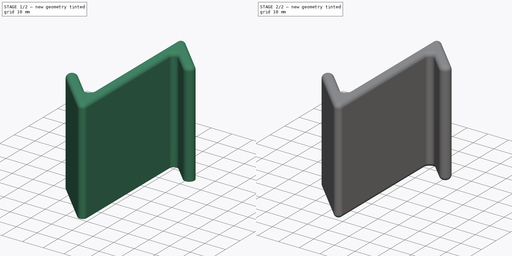
[diagram: build sequence overview — one tinted view per stage of 2, left to right]
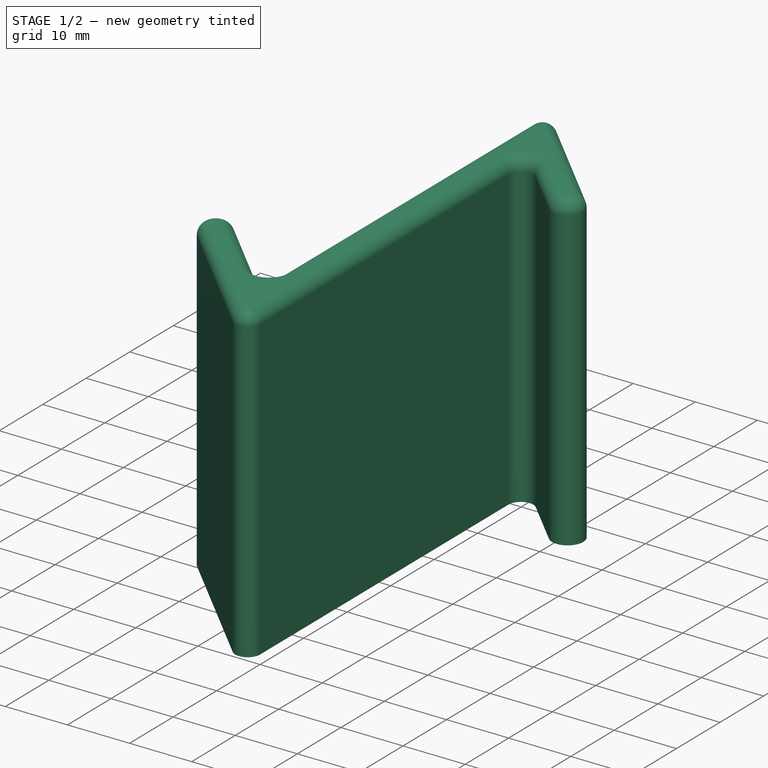
[diagram: stage 1 of 2 — iso view after this stage's code; geometry added in this stage tinted green]
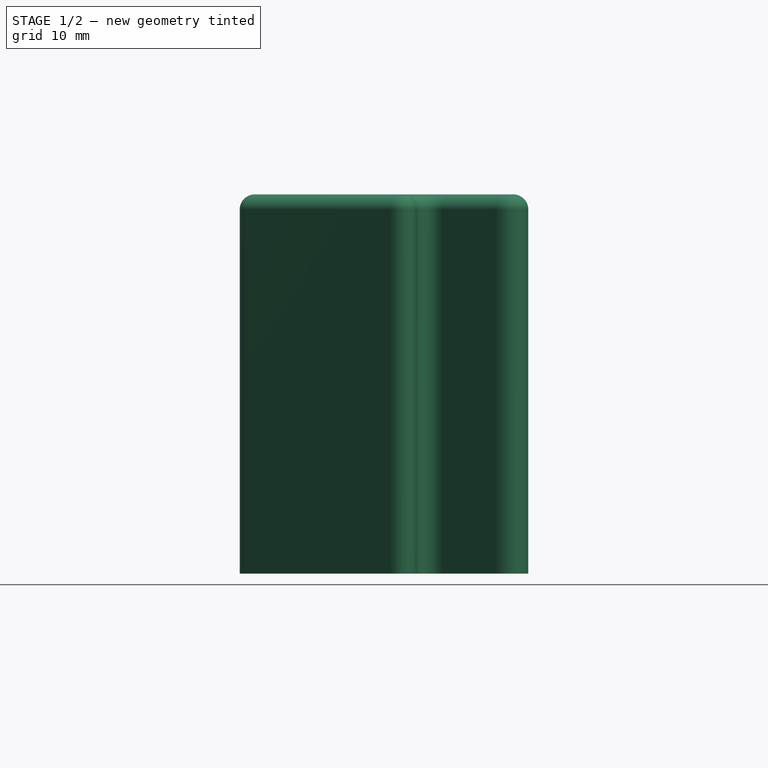
[diagram: stage 1 of 2 — front view after this stage's code; geometry added in this stage tinted green]
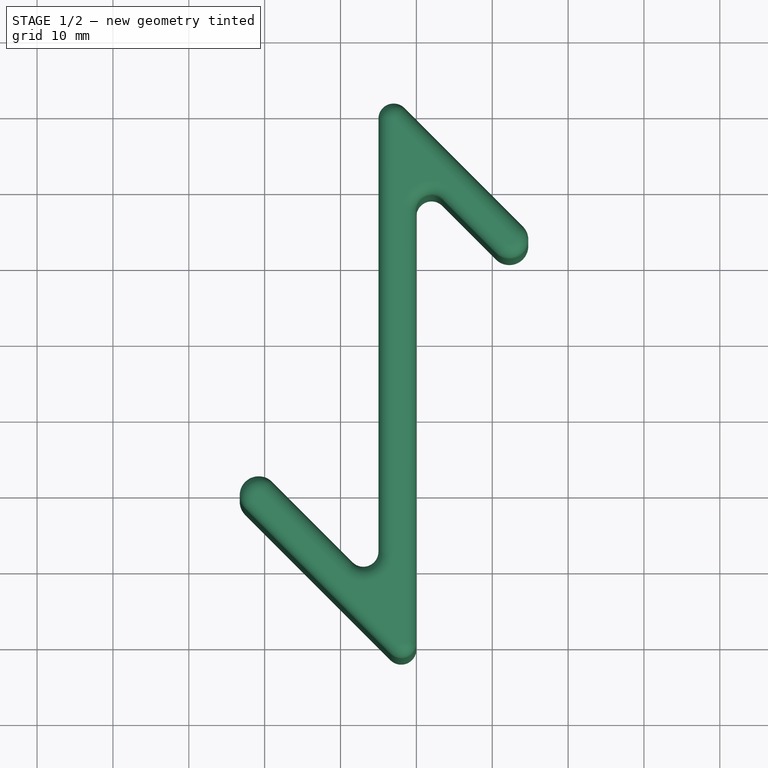
[diagram: stage 1 of 2 — top view after this stage's code; geometry added in this stage tinted green]
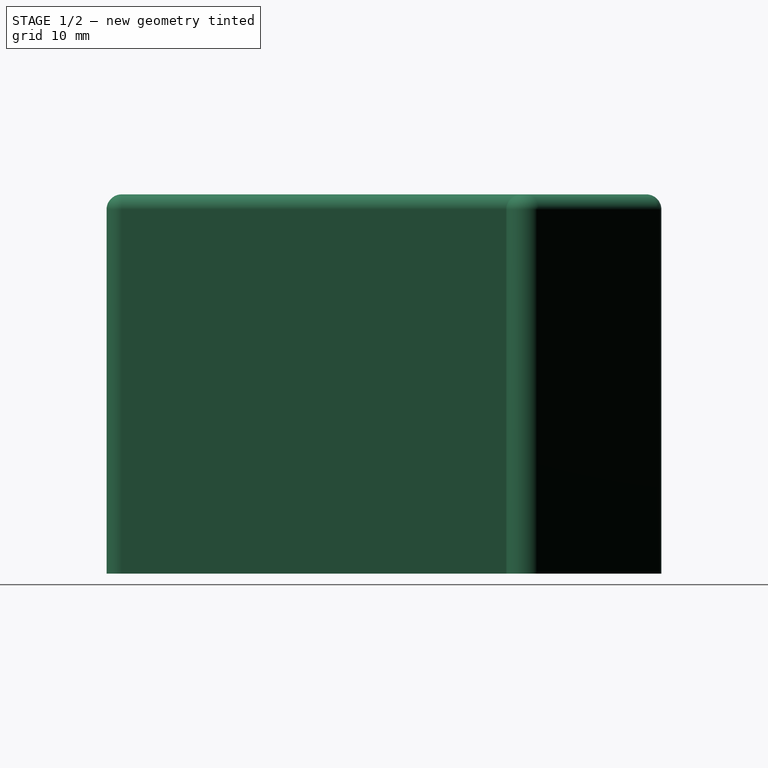
[diagram: stage 1 of 2 — right view after this stage's code; geometry added in this stage tinted green]
FCSTD DOCUMENT  (FreeCAD 0.18R16146 (Git))
Label: nexus-hook
License: All rights reserved
LicenseURL: http://en.wikipedia.org/wiki/All_rights_reserved
objects: PartDesign::Body×2, PartDesign::Fillet×2, Sketcher::SketchObject×1, PartDesign::Pad×1
note: 7 computed .brp shape members not serialized (recipe doc carries the construction recipe); baked Part::Feature solids carry a one-line shape summary decoded from their .brp

FEATURE [PartDesign::Body] Body
  Origin = -> Origin
FEATURE [Sketcher::SketchObject] Sketch
  MapMode = 5
  Support = -> [XY_Plane001]
  sketch-geometry (13):
    g0: LineSegment StartX=0 StartY=0 StartZ=0 EndX=0 EndY=37.0711 EndZ=0
    g1: LineSegment StartX=3.41421 StartY=38.4853 StartZ=0 EndX=10.4853 EndY=31.4142 EndZ=0
    g2: LineSegment StartX=14.0208 StartY=34.9497 StartZ=0 EndX=-1.58579 EndY=50.5563 EndZ=0
    g3: LineSegment StartX=-5 StartY=49.1421 StartZ=0 EndX=-5 EndY=-7.92893 EndZ=0
    g4: LineSegment StartX=-8.41421 StartY=-9.34315 StartZ=0 EndX=-19.0208 EndY=1.26346 EndZ=0
    g5: LineSegment StartX=-22.5564 StartY=-2.27207 StartZ=0 EndX=-3.41421 EndY=-21.4142 EndZ=0
    g6: LineSegment StartX=0 StartY=-20 StartZ=0 EndX=0 EndY=0 EndZ=0
    g7: ArcOfCircle CenterX=-3 CenterY=49.1421 CenterZ=0 NormalX=0 NormalY=0 NormalZ=1 AngleXU=0 Radius=2 StartAngle=0.785398 EndAngle=3.14159
    g8: ArcOfCircle CenterX=-2 CenterY=-20 CenterZ=0 NormalX=0 NormalY=0 NormalZ=1 AngleXU=0 Radius=2 StartAngle=3.92699 EndAngle=6.28319
    g9: ArcOfCircle CenterX=-7 CenterY=-7.92893 CenterZ=0 NormalX=0 NormalY=0 NormalZ=1 AngleXU=0 Radius=2 StartAngle=3.92699 EndAngle=6.28319
    g10: ArcOfCircle CenterX=2 CenterY=37.0711 CenterZ=0 NormalX=0 NormalY=0 NormalZ=1 AngleXU=0 Radius=2 StartAngle=0.785398 EndAngle=3.14159
    g11: ArcOfCircle CenterX=12.253 CenterY=33.182 CenterZ=0 NormalX=0 NormalY=0 NormalZ=1 AngleXU=0 Radius=2.5 StartAngle=3.92699 EndAngle=7.06858
    g12: ArcOfCircle CenterX=-20.7886 CenterY=-0.504307 CenterZ=0 NormalX=0 NormalY=0 NormalZ=1 AngleXU=0 Radius=2.5 StartAngle=0.785396 EndAngle=3.92699
  constraints (33):
    c: Coincident(g-1,g0)
    c: Vertical(g0)
    c: Vertical(g3)
    c: Coincident(g6,g0)
    c: Vertical(g6)
    c: Parallel(g4,g5)
    c: Angle(g3,g2) = 0.785398
    c: Angle(g3,g4) = 0.785398
    c: Tangent(g3,g7) = -1.5708
    c: Tangent(g2,g7) = -1.5708
    c: Tangent(g6,g8) = -1.5708
    c: Tangent(g5,g8) = -1.5708
    c: Tangent(g4,g9) = 1.5708
    c: Tangent(g3,g9) = 1.5708
    c: Tangent(g0,g10) = 1.5708
    c: Tangent(g1,g10) = 1.5708
    c: Equal(g7,g8)
    c: Equal(g10,g9)
    c: Distance(g4,g5) = 5
    c: DistanceX(g3,g0) = 5
    c: Equal(g9,g8)
    c: DistanceY(g3,g0) = 45
    c: Distance(g4,g4) = 15
    c: Radius(g9) = 2
    c: DistanceY(g6,g0) = 20
    c: Parallel(g1,g2)
    c: Distance(g1) = 10
    c: Tangent(g11,g2) = -1.5708
    c: Tangent(g11,g1) = -1.5708
    c: Distance(g11,g2) = 5
    c: Coincident(g12,g4)
    c: Equal(g11,g12)
    c: Tangent(g12,g5) = -1.5708
FEATURE [PartDesign::Pad] Pad
  Length = 50
  Length2 = 100
  Profile = -> Sketch
  Type = 0
FEATURE [PartDesign::Fillet] Fillet
  Base = -> Pad [Face15]
  BaseFeature = -> Pad
  Radius = 2
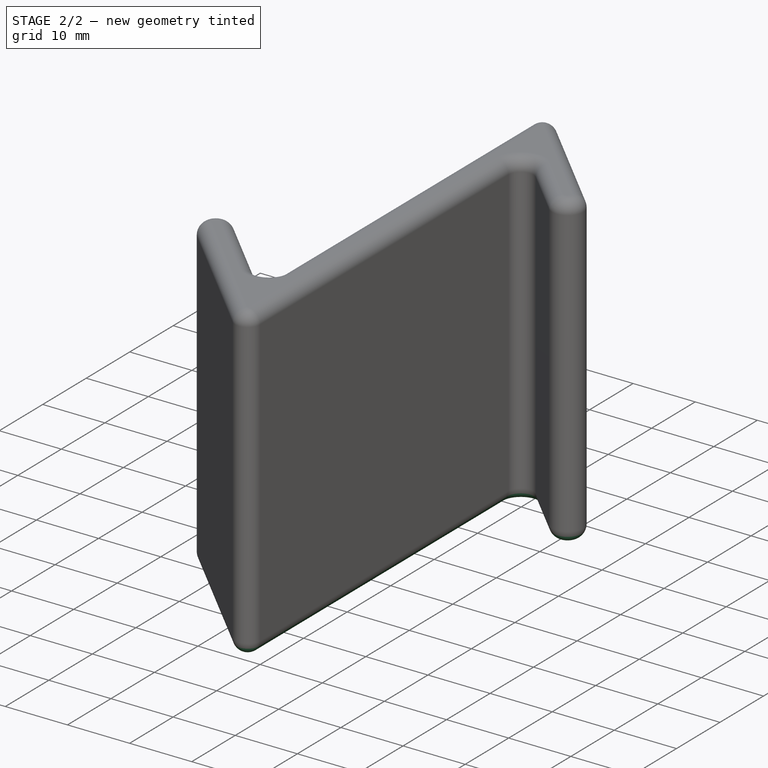
[diagram: stage 2 of 2 — iso view after this stage's code; geometry added in this stage tinted green]
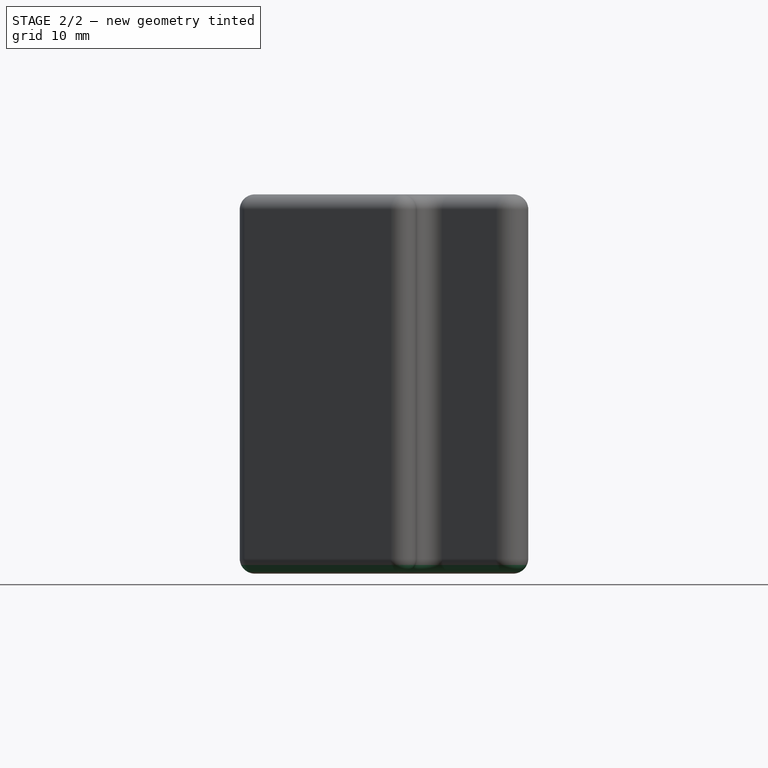
[diagram: stage 2 of 2 — front view after this stage's code; geometry added in this stage tinted green]
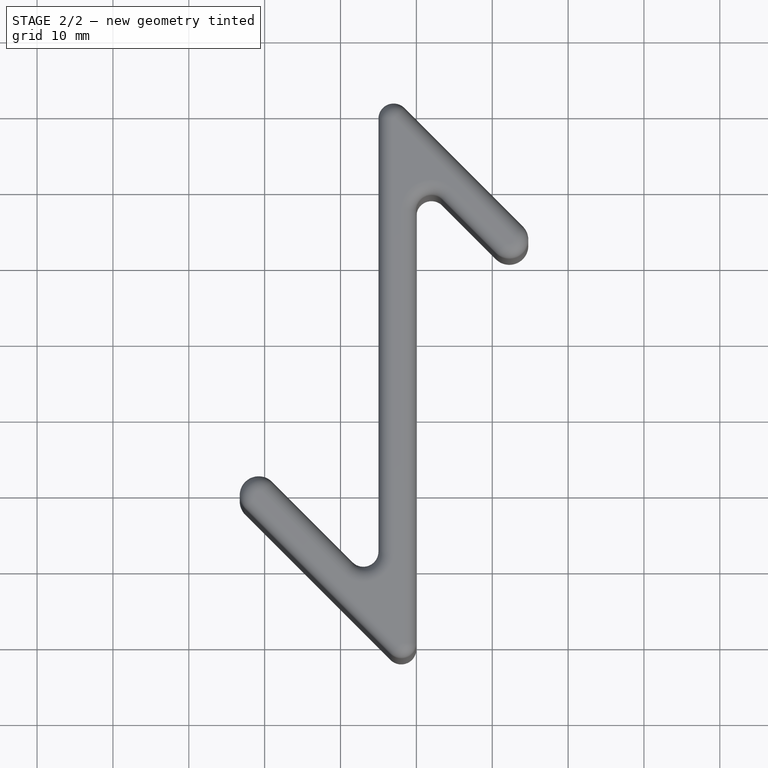
[diagram: stage 2 of 2 — top view after this stage's code; geometry added in this stage tinted green]
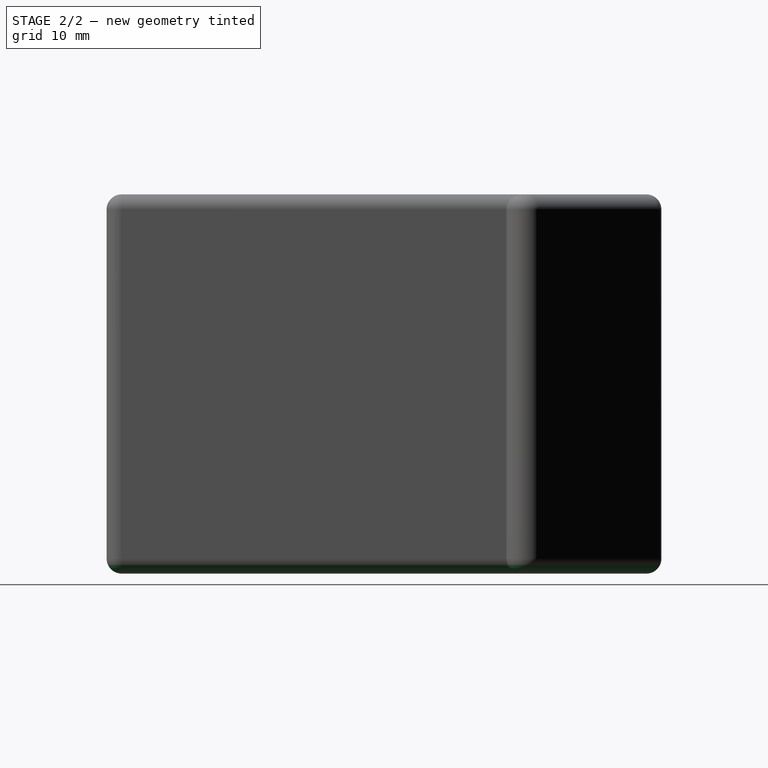
[diagram: stage 2 of 2 — right view after this stage's code; geometry added in this stage tinted green]
FEATURE [PartDesign::Fillet] Fillet001
  Base = -> Fillet [Face4]
  BaseFeature = -> Fillet
  Radius = 2
FEATURE [PartDesign::Body] Body001
  Group = -> [Sketch,Pad,Fillet,Fillet001]
  Origin = -> Origin001
  Tip = -> Fillet001
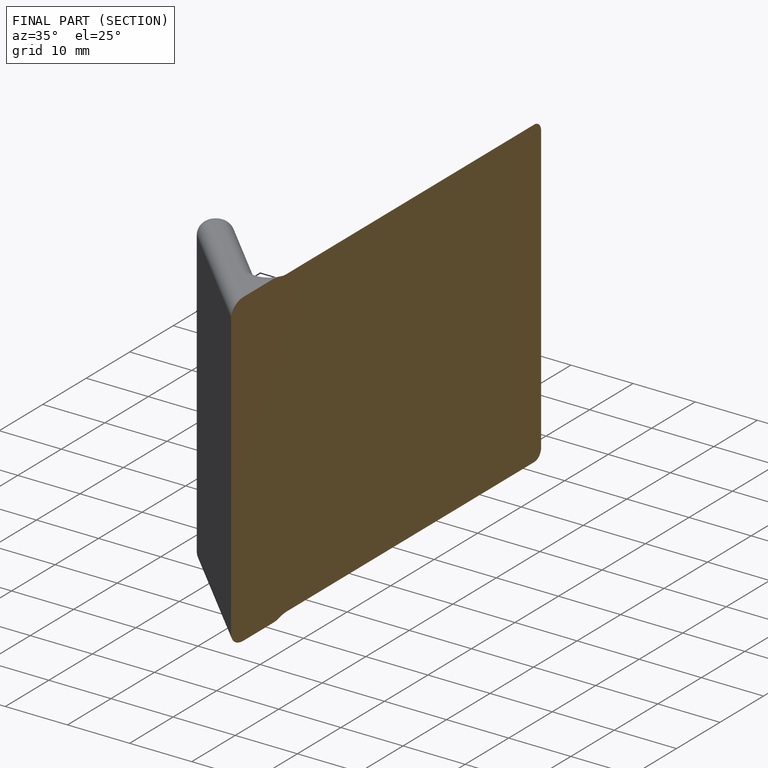
[diagram: finished part — half-section view (interior)]
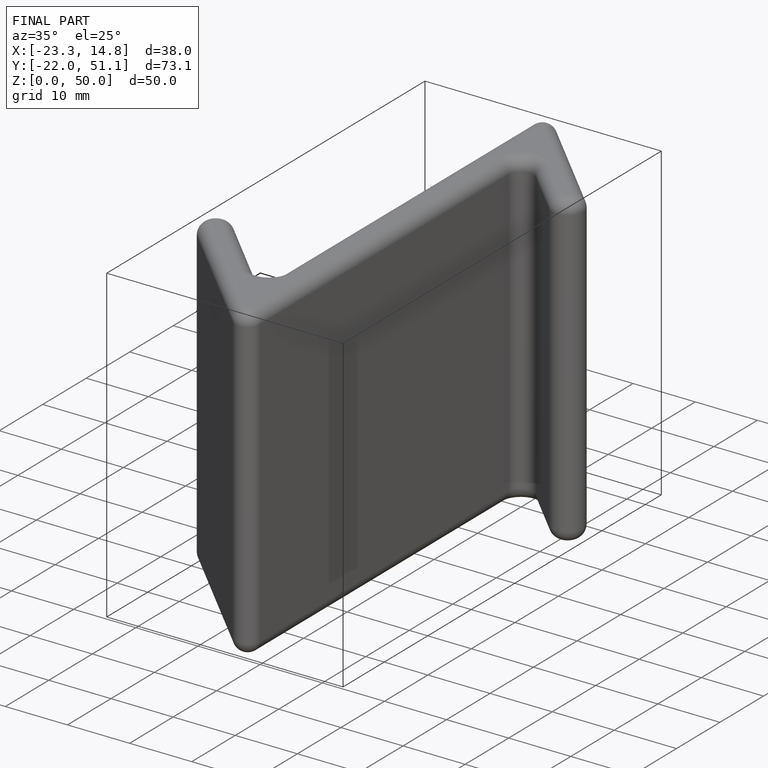
[diagram: finished part — iso view with bounding-box wireframe]
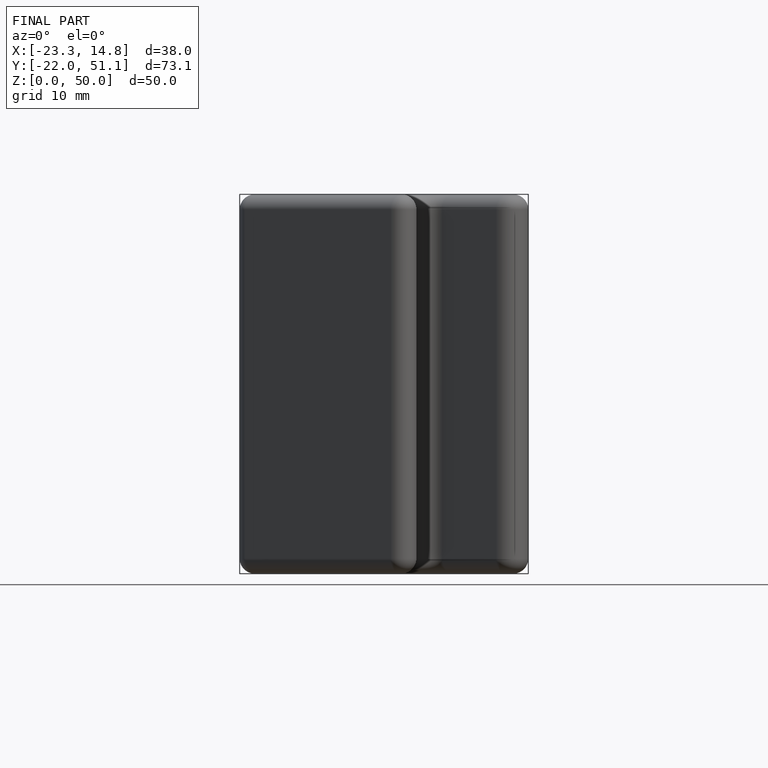
[diagram: finished part — front view with bounding-box wireframe]
